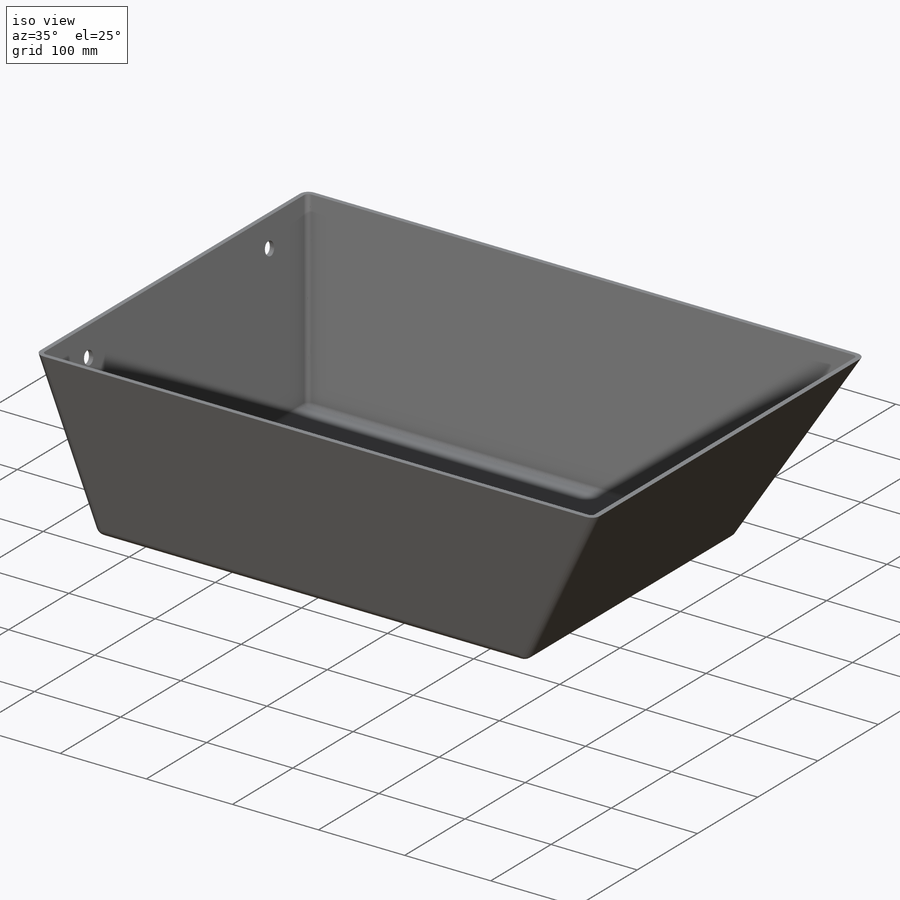
[diagram: iso view]
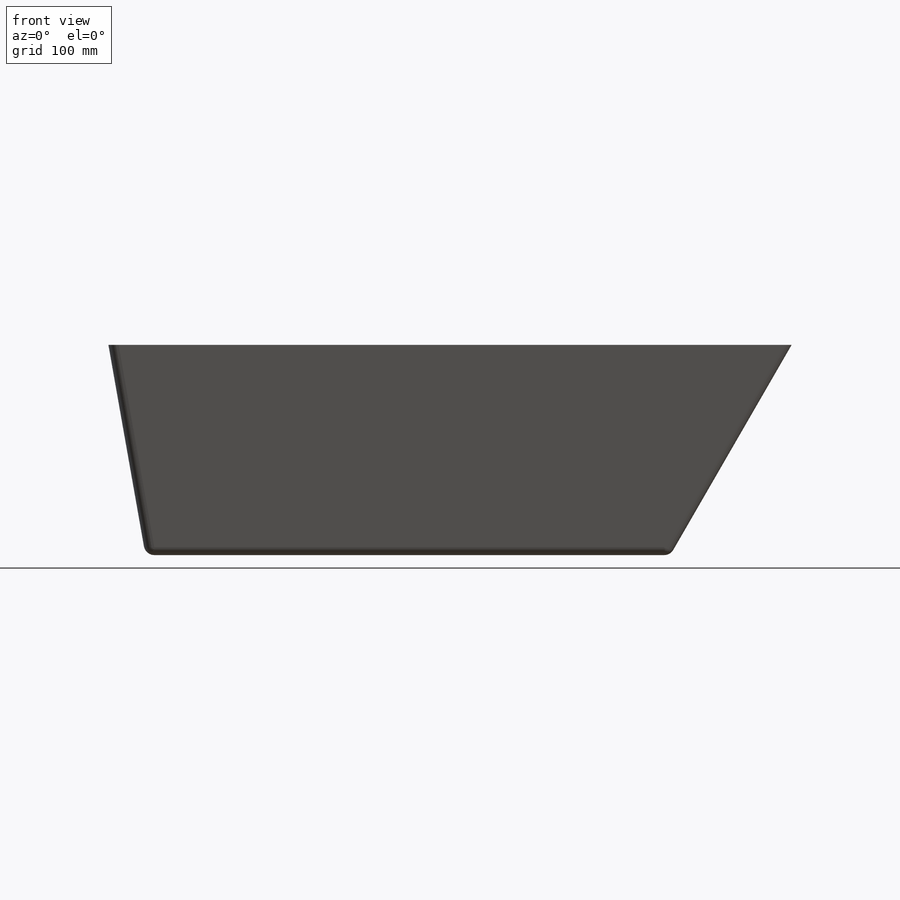
[diagram: front view]
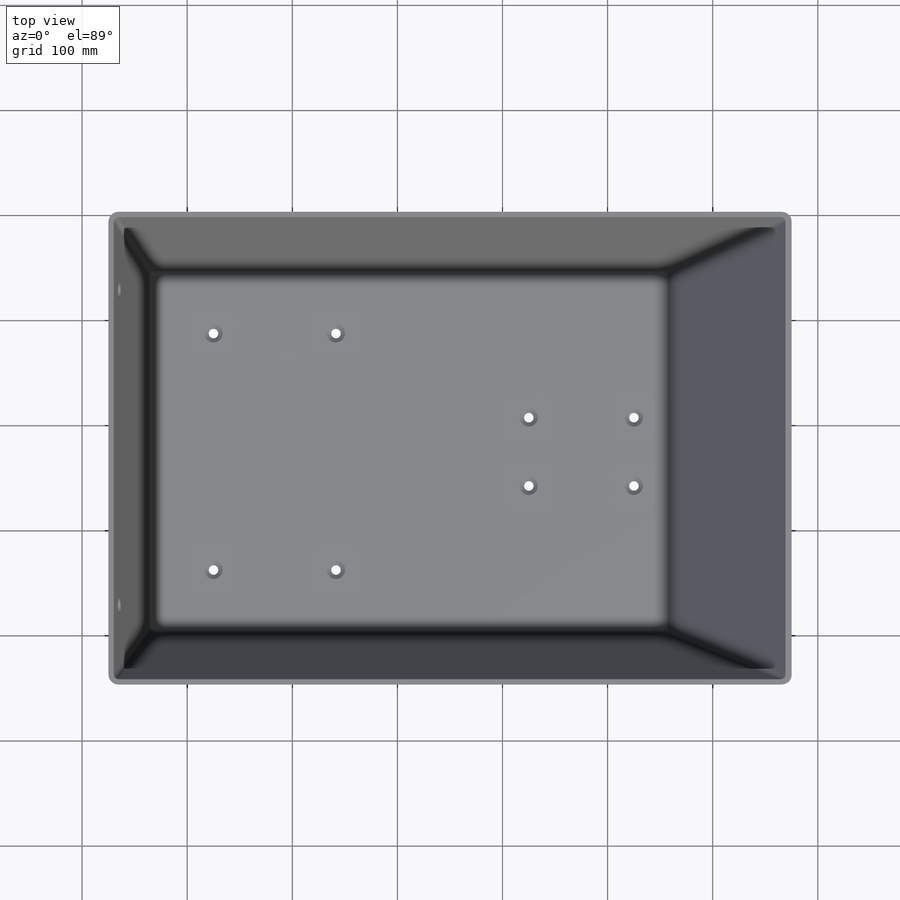
[diagram: top view]
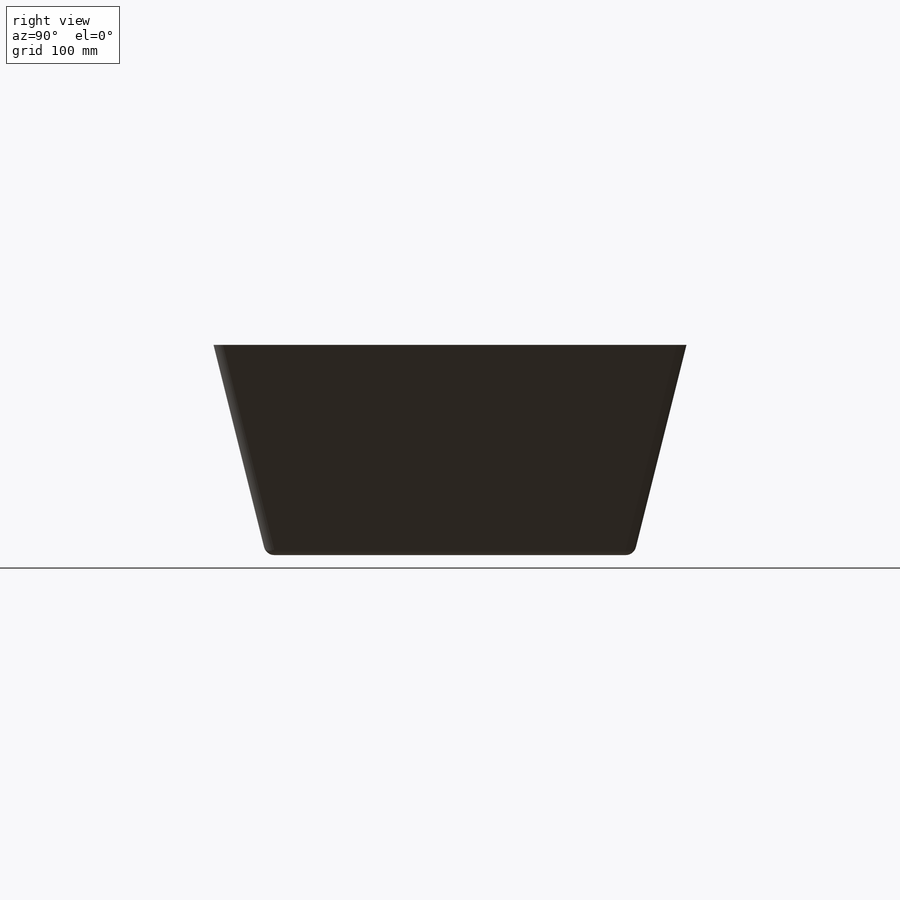
[diagram: right view]
SOLIDWORKS PART (.sldprt)
format: sldprt  version: not decoded by parser v0  size: 274,432 bytes
history: native  units: mm
features: sketch x5, cut_extrude x2, material x1, extrude x1, fillet x1, shell x1, hole x1 (+11 scaffold rows collapsed)
feature tree (23):
  scaffold x11  (default folders/planes/origin — collapsed)
  material  "Material <not specified>"
  sketch  "Sketch1"  dims[c1.D1=200.0mm c1.D2=650.0mm c1.D3=650.0mm c2.D3=60.0deg c2.D4=650.0mm c3.D4=80.0deg]
  extrude  "Boss-Extrude1"  Depth=450mm
  sketch  "Sketch2"  dims[D1=350.0mm D2=450.0mm]
  cut_extrude  "Cut-Extrude1"  [1 undecoded]
  fillet  "Fillet1"  Radius=10mm
  shell  "Shell1"  Thickness=5mm
  sketch  "Sketch3"  dims[D3=15.0mm D1=30.0mm D2=300.0mm]
  cut_extrude  "Cut-Extrude2"  [1 undecoded]
  hole  "CSK for M8 Flat Head Machine Screw2"  Diameter=9mm Depth=5mm
  sketch  "Sketch7"  dims[D1=400.0mm D2=100.0mm D3=65.0mm D4=225.0mm D5=100.0mm]
  sketch  "Sketch6"  dims[hole-wizard template sketch: 54 standard entries collapsed; hole parameters kept: c17.Thru Hole Dia.=9.0mm c17.Thru Hole Depth=5.0mm c17.Near C'Sink Dia.=17.3mm c17.D4=~3.666174mm c17.Near C'Sink Angle=90.0deg]
decode coverage: 9 of 11 modeling features carry decoded parameters
note: ~ marks probable driven/reference dimensions
note: 2 parameter values undecoded
note: suppression state not decoded; provenance and decode notes live in map.json
